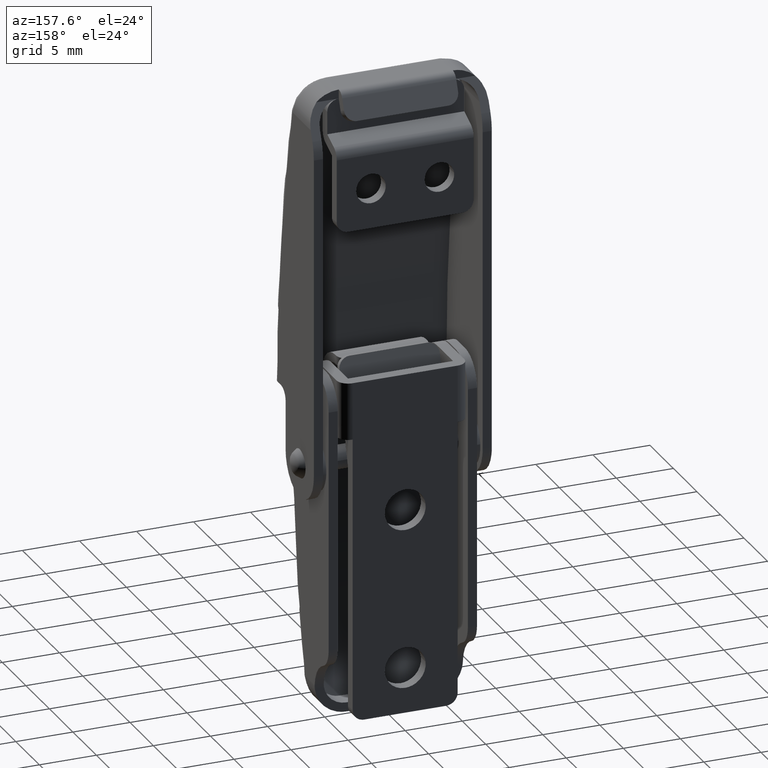
[diagram: clean part render]
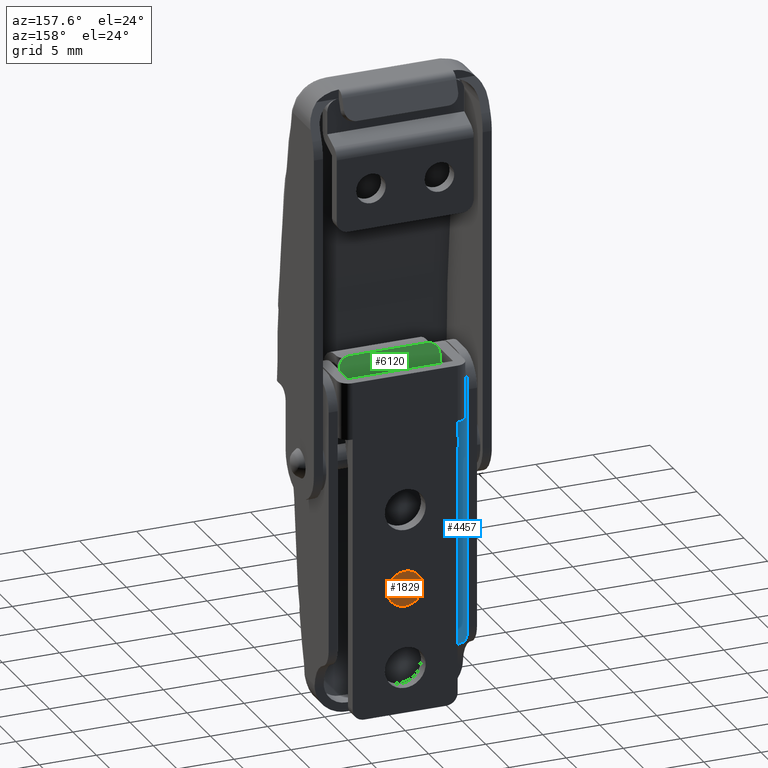
[diagram: same view with three faces highlighted in distinct colors, each labeled with its STEP entity id]
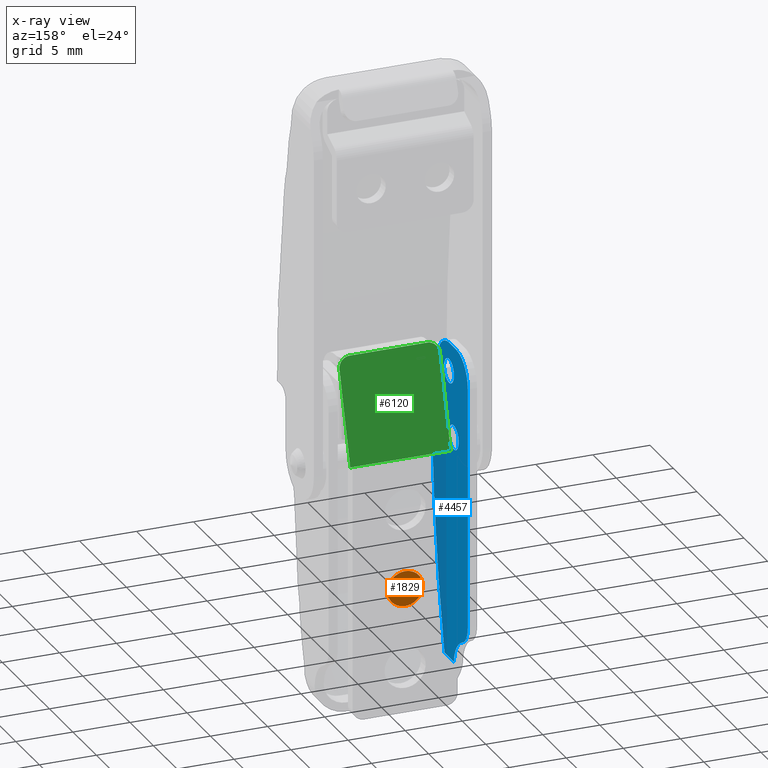
[diagram: x-ray of the same camera — body ghosted, the three highlighted faces saturated]
A machine part, auxiliary view with three faces highlighted in distinct colors.
The next image is the same camera in x-ray (body ghosted, the three faces saturated) — at least one of them is partly hidden behind the body in this view.
Their STEP definitions:

[orange] entity #1829 — the highlighted face is a freeform B-spline surface patch.
#1501=CARTESIAN_POINT('',(-1.545221867319744,8.341299E-011,5.621611598988027));
#1502=VERTEX_POINT('',#1501);
#1508=CARTESIAN_POINT('',(-2.842171E-014,4.440892E-016,3.949999999970709));
#1509=VERTEX_POINT('',#1508);
#1510=CARTESIAN_POINT('',(-1.545221867319744,8.341299E-011,5.621611598988027));
#1511=CARTESIAN_POINT('',(-1.550000000000028,4.440892E-016,5.560899666468147));
#1512=CARTESIAN_POINT('',(-1.550000000000028,4.440892E-016,5.499999999970710));
#1513=CARTESIAN_POINT('',(-1.550000000000029,4.440892E-016,3.949999999970710));
#1514=CARTESIAN_POINT('',(-2.842171E-014,4.440892E-016,3.949999999970709));
#1522=(BOUNDED_CURVE()B_SPLINE_CURVE(2,(#1510,#1511,#1512,#1513,#1514),.UNSPECIFIED.,.F.,.U.)B_SPLINE_CURVE_WITH_KNOTS((3,2,3),(0.736331300492405,0.750000000000000,1.0),.UNSPECIFIED.)CURVE()GEOMETRIC_REPRESENTATION_ITEM()RATIONAL_B_SPLINE_CURVE((0.969723355878890,0.983986122416906,1.0,0.707106781186547,1.0))REPRESENTATION_ITEM(''));
#1523=EDGE_CURVE('',#1502,#1509,#1522,.T.);
#1525=CARTESIAN_POINT('',(0.833668730056082,1.303993E-011,6.806712075589150));
#1526=VERTEX_POINT('',#1525);
#1527=CARTESIAN_POINT('',(-2.842171E-014,4.440892E-016,3.949999999970709));
#1528=CARTESIAN_POINT('',(1.549999999999971,4.440892E-016,3.949999999970710));
#1529=CARTESIAN_POINT('',(1.549999999999972,4.440892E-016,5.499999999970710));
#1530=CARTESIAN_POINT('',(1.549999999999972,4.440892E-016,6.349700166473440));
#1531=CARTESIAN_POINT('',(0.833668730056082,1.303993E-011,6.806712075589150));
#1539=(BOUNDED_CURVE()B_SPLINE_CURVE(2,(#1527,#1528,#1529,#1530,#1531),.UNSPECIFIED.,.F.,.U.)B_SPLINE_CURVE_WITH_KNOTS((3,2,3),(0.0,0.250000000000000,0.407950112579082),.UNSPECIFIED.)CURVE()GEOMETRIC_REPRESENTATION_ITEM()RATIONAL_B_SPLINE_CURVE((1.0,0.707106781186547,1.0,0.814949932459062,0.863729296924987))REPRESENTATION_ITEM(''));
#1540=EDGE_CURVE('',#1509,#1526,#1539,.T.);
#1584=CARTESIAN_POINT('',(-2.842171E-014,4.440892E-016,7.049999999970710));
#1585=VERTEX_POINT('',#1584);
#1586=CARTESIAN_POINT('',(0.833668730056082,1.303993E-011,6.806712075589150));
#1587=CARTESIAN_POINT('',(0.452333486104904,4.440892E-016,7.049999999970710));
#1588=CARTESIAN_POINT('',(-2.842171E-014,4.440892E-016,7.049999999970710));
#1596=(BOUNDED_CURVE()B_SPLINE_CURVE(2,(#1586,#1587,#1588),.UNSPECIFIED.,.F.,.U.)B_SPLINE_CURVE_WITH_KNOTS((3,3),(0.407950112579082,0.500000000000000),.UNSPECIFIED.)CURVE()GEOMETRIC_REPRESENTATION_ITEM()RATIONAL_B_SPLINE_CURVE((0.863729296924987,0.892156848727486,1.0))REPRESENTATION_ITEM(''));
#1597=EDGE_CURVE('',#1526,#1585,#1596,.T.);
#1599=CARTESIAN_POINT('',(-2.842171E-014,4.440892E-016,7.049999999970710));
#1600=CARTESIAN_POINT('',(-1.432805260893445,4.440892E-016,7.049999999970710));
#1601=CARTESIAN_POINT('',(-1.545221867319745,8.341299E-011,5.621611598988027));
#1609=(BOUNDED_CURVE()B_SPLINE_CURVE(2,(#1599,#1600,#1601),.UNSPECIFIED.,.F.,.U.)B_SPLINE_CURVE_WITH_KNOTS((3,3),(0.500000000000000,0.736331300492405),.UNSPECIFIED.)CURVE()GEOMETRIC_REPRESENTATION_ITEM()RATIONAL_B_SPLINE_CURVE((1.0,0.723120658769641,0.969723355878891))REPRESENTATION_ITEM(''));
#1610=EDGE_CURVE('',#1585,#1502,#1609,.T.);
#1818=CARTESIAN_POINT('',(-1.704366074303952,2.220446E-016,3.795155024004315));
#1819=CARTESIAN_POINT('',(-1.704366074303952,2.220446E-016,7.204845308531021));
#1820=CARTESIAN_POINT('',(1.704250193039686,2.220446E-016,3.795155024004315));
#1821=CARTESIAN_POINT('',(1.704250193039686,2.220446E-016,7.204845308531021));
#1822=B_SPLINE_SURFACE_WITH_KNOTS('',1,1,((#1818,#1820),(#1819,#1821)),.UNSPECIFIED.,.F.,.F.,.U.,(2,2),(2,2),(0.0,3.409690284526706),(0.0,3.408616267343637),.UNSPECIFIED.);
#1823=ORIENTED_EDGE('',*,*,#1523,.F.);
#1824=ORIENTED_EDGE('',*,*,#1610,.F.);
#1825=ORIENTED_EDGE('',*,*,#1597,.F.);
#1826=ORIENTED_EDGE('',*,*,#1540,.F.);
#1827=EDGE_LOOP('',(#1823,#1824,#1825,#1826));
#1828=FACE_OUTER_BOUND('',#1827,.T.);
#1829=ADVANCED_FACE('',(#1828),#1822,.T.);

[blue] entity #4457 — the highlighted face is a freeform B-spline surface patch.
#1905=CARTESIAN_POINT('',(-5.699999999998930,-4.499999999987829,10.549999999999800));
#1906=VERTEX_POINT('',#1905);
#1907=CARTESIAN_POINT('',(-5.699999999998930,-3.453236799568765,9.582382050523187));
#1908=VERTEX_POINT('',#1907);
#1909=CARTESIAN_POINT('',(-5.699999999998930,-4.499999999987829,10.549999999999800));
#1910=CARTESIAN_POINT('',(-5.699999999998931,-3.529389983763730,10.549999999999800));
#1911=CARTESIAN_POINT('',(-5.699999999998930,-3.453236799568766,9.582382050523187));
#1919=(BOUNDED_CURVE()B_SPLINE_CURVE(2,(#1909,#1910,#1911),.UNSPECIFIED.,.F.,.U.)B_SPLINE_CURVE_WITH_KNOTS((3,3),(0.0,0.236331300629771),.UNSPECIFIED.)CURVE()GEOMETRIC_REPRESENTATION_ITEM()RATIONAL_B_SPLINE_CURVE((1.0,0.723120658608707,0.969723356165563))REPRESENTATION_ITEM(''));
#1920=EDGE_CURVE('',#1906,#1908,#1919,.T.);
#1922=CARTESIAN_POINT('',(-5.699999999998930,-5.546763200406893,9.417617949476419));
#1923=VERTEX_POINT('',#1922);
#1924=CARTESIAN_POINT('',(-5.699999999998930,-5.546763200406893,9.417617949476417));
#1925=CARTESIAN_POINT('',(-5.699999999998930,-5.549999999987830,9.458745387632559));
#1926=CARTESIAN_POINT('',(-5.699999999998930,-5.549999999987829,9.499999999999801));
#1927=CARTESIAN_POINT('',(-5.699999999998931,-5.549999999987829,10.549999999999802));
#1928=CARTESIAN_POINT('',(-5.699999999998930,-4.499999999987829,10.549999999999800));
#1936=(BOUNDED_CURVE()B_SPLINE_CURVE(2,(#1924,#1925,#1926,#1927,#1928),.UNSPECIFIED.,.F.,.U.)B_SPLINE_CURVE_WITH_KNOTS((3,2,3),(0.736331300629771,0.750000000000000,1.0),.UNSPECIFIED.)CURVE()GEOMETRIC_REPRESENTATION_ITEM()RATIONAL_B_SPLINE_CURVE((0.969723356165564,0.983986122577841,1.0,0.707106781186548,1.0))REPRESENTATION_ITEM(''));
#1937=EDGE_CURVE('',#1923,#1906,#1936,.T.);
#2004=CARTESIAN_POINT('',(-5.699999999998930,-4.499999999987829,8.449999999999800));
#2005=VERTEX_POINT('',#2004);
#2006=CARTESIAN_POINT('',(-5.699999999998930,-3.453236799568766,9.582382050523187));
#2007=CARTESIAN_POINT('',(-5.699999999998931,-3.449999999987830,9.541254612367043));
#2008=CARTESIAN_POINT('',(-5.699999999998930,-3.449999999987830,9.499999999999801));
#2009=CARTESIAN_POINT('',(-5.699999999998931,-3.449999999987830,8.449999999999800));
#2010=CARTESIAN_POINT('',(-5.699999999998930,-4.499999999987829,8.449999999999800));
#2018=(BOUNDED_CURVE()B_SPLINE_CURVE(2,(#2006,#2007,#2008,#2009,#2010),.UNSPECIFIED.,.F.,.U.)B_SPLINE_CURVE_WITH_KNOTS((3,2,3),(0.236331300629771,0.250000000000000,0.500000000000000),.UNSPECIFIED.)CURVE()GEOMETRIC_REPRESENTATION_ITEM()RATIONAL_B_SPLINE_CURVE((0.969723356165563,0.983986122577841,1.0,0.707106781186548,1.0))REPRESENTATION_ITEM(''));
#2019=EDGE_CURVE('',#1908,#2005,#2018,.T.);
#2053=CARTESIAN_POINT('',(-5.699999999998930,-4.499999999987829,8.449999999999800));
#2054=CARTESIAN_POINT('',(-5.699999999998931,-5.470610016211929,8.449999999999802));
#2055=CARTESIAN_POINT('',(-5.699999999998930,-5.546763200406893,9.417617949476419));
#2063=(BOUNDED_CURVE()B_SPLINE_CURVE(2,(#2053,#2054,#2055),.UNSPECIFIED.,.F.,.U.)B_SPLINE_CURVE_WITH_KNOTS((3,3),(0.500000000000000,0.736331300629771),.UNSPECIFIED.)CURVE()GEOMETRIC_REPRESENTATION_ITEM()RATIONAL_B_SPLINE_CURVE((1.0,0.723120658608707,0.969723356165563))REPRESENTATION_ITEM(''));
#2064=EDGE_CURVE('',#2005,#1923,#2063,.T.);
#2087=CARTESIAN_POINT('',(-5.699999999998930,-3.499999999998976,5.049999999999799));
#2088=VERTEX_POINT('',#2087);
#2089=CARTESIAN_POINT('',(-5.699999999998930,-2.453236799579911,4.082382050523185));
#2090=VERTEX_POINT('',#2089);
#2091=CARTESIAN_POINT('',(-5.699999999998930,-3.499999999998976,5.049999999999799));
#2092=CARTESIAN_POINT('',(-5.699999999998932,-2.529389983774875,5.049999999999800));
#2093=CARTESIAN_POINT('',(-5.699999999998930,-2.453236799579912,4.082382050523185));
#2101=(BOUNDED_CURVE()B_SPLINE_CURVE(2,(#2091,#2092,#2093),.UNSPECIFIED.,.F.,.U.)B_SPLINE_CURVE_WITH_KNOTS((3,3),(0.0,0.236331300629771),.UNSPECIFIED.)CURVE()GEOMETRIC_REPRESENTATION_ITEM()RATIONAL_B_SPLINE_CURVE((1.0,0.723120658608707,0.969723356165563))REPRESENTATION_ITEM(''));
#2102=EDGE_CURVE('',#2088,#2090,#2101,.T.);
#2104=CARTESIAN_POINT('',(-5.699999999998930,-4.546763200418039,3.917617949476416));
#2105=VERTEX_POINT('',#2104);
#2106=CARTESIAN_POINT('',(-5.699999999998930,-4.546763200418039,3.917617949476416));
#2107=CARTESIAN_POINT('',(-5.699999999998930,-4.549999999998975,3.958745387632558));
#2108=CARTESIAN_POINT('',(-5.699999999998930,-4.549999999998975,3.999999999999800));
#2109=CARTESIAN_POINT('',(-5.699999999998931,-4.549999999998975,5.049999999999799));
#2110=CARTESIAN_POINT('',(-5.699999999998930,-3.499999999998976,5.049999999999799));
#2118=(BOUNDED_CURVE()B_SPLINE_CURVE(2,(#2106,#2107,#2108,#2109,#2110),.UNSPECIFIED.,.F.,.U.)B_SPLINE_CURVE_WITH_KNOTS((3,2,3),(0.736331300629771,0.750000000000000,1.0),.UNSPECIFIED.)CURVE()GEOMETRIC_REPRESENTATION_ITEM()RATIONAL_B_SPLINE_CURVE((0.969723356165563,0.983986122577841,1.0,0.707106781186548,1.0))REPRESENTATION_ITEM(''));
#2119=EDGE_CURVE('',#2105,#2088,#2118,.T.);
#2186=CARTESIAN_POINT('',(-5.699999999998930,-3.499999999998976,2.949999999999800));
#2187=VERTEX_POINT('',#2186);
#2188=CARTESIAN_POINT('',(-5.699999999998930,-2.453236799579912,4.082382050523185));
#2189=CARTESIAN_POINT('',(-5.699999999998930,-2.449999999998976,4.041254612367043));
#2190=CARTESIAN_POINT('',(-5.699999999998930,-2.449999999998976,3.999999999999800));
#2191=CARTESIAN_POINT('',(-5.699999999998931,-2.449999999998975,2.949999999999800));
#2192=CARTESIAN_POINT('',(-5.699999999998930,-3.499999999998976,2.949999999999800));
#2200=(BOUNDED_CURVE()B_SPLINE_CURVE(2,(#2188,#2189,#2190,#2191,#2192),.UNSPECIFIED.,.F.,.U.)B_SPLINE_CURVE_WITH_KNOTS((3,2,3),(0.236331300629771,0.250000000000000,0.500000000000000),.UNSPECIFIED.)CURVE()GEOMETRIC_REPRESENTATION_ITEM()RATIONAL_B_SPLINE_CURVE((0.969723356165563,0.983986122577841,1.0,0.707106781186548,1.0))REPRESENTATION_ITEM(''));
#2201=EDGE_CURVE('',#2090,#2187,#2200,.T.);
#2235=CARTESIAN_POINT('',(-5.699999999998930,-3.499999999998976,2.949999999999800));
#2236=CARTESIAN_POINT('',(-5.699999999998931,-4.470610016223076,2.949999999999800));
#2237=CARTESIAN_POINT('',(-5.699999999998930,-4.546763200418039,3.917617949476416));
#2245=(BOUNDED_CURVE()B_SPLINE_CURVE(2,(#2235,#2236,#2237),.UNSPECIFIED.,.F.,.U.)B_SPLINE_CURVE_WITH_KNOTS((3,3),(0.500000000000000,0.736331300629771),.UNSPECIFIED.)CURVE()GEOMETRIC_REPRESENTATION_ITEM()RATIONAL_B_SPLINE_CURVE((1.0,0.723120658608707,0.969723356165563))REPRESENTATION_ITEM(''));
#2246=EDGE_CURVE('',#2187,#2105,#2245,.T.);
#4248=CARTESIAN_POINT('',(-5.699999999998930,-3.484962311258985,-15.899999999996600));
#4249=VERTEX_POINT('',#4248);
#4259=CARTESIAN_POINT('',(-5.699999999998930,-5.471578582851690,-15.899999999996901));
#4260=VERTEX_POINT('',#4259);
#4261=CARTESIAN_POINT('',(-5.699999999998930,-5.471578582851690,-15.899999999996901));
#4262=CARTESIAN_POINT('',(-5.699999999998930,-3.484962311258985,-15.899999999996600));
#4263=QUASI_UNIFORM_CURVE('',1,(#4261,#4262),.UNSPECIFIED.,.F.,.U.);
#4264=EDGE_CURVE('',#4260,#4249,#4263,.T.);
#4320=CARTESIAN_POINT('',(-5.699999999998909,-0.115385042421190,-17.293604684015879));
#4321=CARTESIAN_POINT('',(-5.699999999998910,-8.584614613348464,-17.293604684015879));
#4322=CARTESIAN_POINT('',(-5.699999999998909,-0.115385042421190,13.393605681800540));
#4323=CARTESIAN_POINT('',(-5.699999999998910,-8.584614613348464,13.393605681800540));
#4324=B_SPLINE_SURFACE_WITH_KNOTS('',1,1,((#4320,#4322),(#4321,#4323)),.UNSPECIFIED.,.F.,.F.,.U.,(2,2),(2,2),(0.0,8.469229570927274),(0.0,30.687210365816419),.UNSPECIFIED.);
#4325=CARTESIAN_POINT('',(-5.699999999998930,-8.199999999998649,7.299999999999420));
#4326=VERTEX_POINT('',#4325);
#4327=CARTESIAN_POINT('',(-5.699999999998930,-5.471578582851633,-15.899999999996890));
#4328=CARTESIAN_POINT('',(-5.699999999998930,-8.199999999998598,-4.460437142876720));
#4329=CARTESIAN_POINT('',(-5.699999999998930,-8.199999999998649,7.299999999999420));
#4337=(BOUNDED_CURVE()B_SPLINE_CURVE(2,(#4327,#4328,#4329),.UNSPECIFIED.,.F.,.U.)CURVE()GEOMETRIC_REPRESENTATION_ITEM()QUASI_UNIFORM_CURVE()RATIONAL_B_SPLINE_CURVE((1.0,0.993155523024599,1.0))REPRESENTATION_ITEM(''));
#4338=EDGE_CURVE('',#4260,#4326,#4337,.T.);
#4339=ORIENTED_EDGE('',*,*,#4338,.F.);
#4340=ORIENTED_EDGE('',*,*,#4264,.T.);
#4341=CARTESIAN_POINT('',(-5.699999999998930,-1.699999999974555,-13.450454583066019));
#4342=VERTEX_POINT('',#4341);
#4343=CARTESIAN_POINT('',(-5.699999999998930,-3.484962311258988,-15.899999999996600));
#4344=CARTESIAN_POINT('',(-5.699999999998930,-3.309366076353770,-14.152839522682712));
#4345=CARTESIAN_POINT('',(-5.699999999998930,-1.699999999974554,-13.450454583066019));
#4353=(BOUNDED_CURVE()B_SPLINE_CURVE(2,(#4343,#4344,#4345),.UNSPECIFIED.,.F.,.U.)CURVE()GEOMETRIC_REPRESENTATION_ITEM()QUASI_UNIFORM_CURVE()RATIONAL_B_SPLINE_CURVE((1.0,0.863031427222150,1.0))REPRESENTATION_ITEM(''));
#4354=EDGE_CURVE('',#4249,#4342,#4353,.T.);
#4355=ORIENTED_EDGE('',*,*,#4354,.T.);
#4356=CARTESIAN_POINT('',(-5.699999999998930,-0.500000000024230,-11.617424305090079));
#4357=VERTEX_POINT('',#4356);
#4358=CARTESIAN_POINT('',(-5.699999999998930,-0.500000000024230,-11.617424305090079));
#4359=CARTESIAN_POINT('',(-5.699999999998930,-0.499999999983512,-12.926731646498345));
#4360=CARTESIAN_POINT('',(-5.699999999998930,-1.699999999974555,-13.450454583066019));
#4368=(BOUNDED_CURVE()B_SPLINE_CURVE(2,(#4358,#4359,#4360),.UNSPECIFIED.,.F.,.U.)CURVE()GEOMETRIC_REPRESENTATION_ITEM()QUASI_UNIFORM_CURVE()RATIONAL_B_SPLINE_CURVE((1.0,0.836660026535550,1.0))REPRESENTATION_ITEM(''));
#4369=EDGE_CURVE('',#4357,#4342,#4368,.T.);
#4370=ORIENTED_EDGE('',*,*,#4369,.F.);
#4371=CARTESIAN_POINT('',(-5.699999999998930,-0.499999999987828,9.499999999995492));
#4372=VERTEX_POINT('',#4371);
#4373=CARTESIAN_POINT('',(-5.699999999998930,-0.500000000024230,-11.617424305090079));
#4374=CARTESIAN_POINT('',(-5.699999999998930,-0.499999999987828,9.499999999995492));
#4375=QUASI_UNIFORM_CURVE('',1,(#4373,#4374),.UNSPECIFIED.,.F.,.U.);
#4376=EDGE_CURVE('',#4357,#4372,#4375,.T.);
#4377=ORIENTED_EDGE('',*,*,#4376,.T.);
#4378=CARTESIAN_POINT('',(-5.699999999998930,-2.999999999987830,11.999999999999799));
#4379=VERTEX_POINT('',#4378);
#4380=CARTESIAN_POINT('',(-5.699999999998930,-2.999999999987830,11.999999999999799));
#4381=CARTESIAN_POINT('',(-5.699999999998930,-1.964466094053830,11.999999999999803));
#4382=CARTESIAN_POINT('',(-5.699999999998930,-1.232233047019938,11.267766952964649));
#4383=CARTESIAN_POINT('',(-5.699999999998930,-0.499999999986045,10.535533905929491));
#4384=CARTESIAN_POINT('',(-5.699999999998930,-0.499999999987830,9.499999999995492));
#4392=(BOUNDED_CURVE()B_SPLINE_CURVE(2,(#4380,#4381,#4382,#4383,#4384),.UNSPECIFIED.,.F.,.U.)B_SPLINE_CURVE_WITH_KNOTS((3,2,3),(0.0,0.500000000000000,1.0),.UNSPECIFIED.)CURVE()GEOMETRIC_REPRESENTATION_ITEM()RATIONAL_B_SPLINE_CURVE((1.0,0.923879532511122,1.0,0.923879532511122,1.0))REPRESENTATION_ITEM(''));
#4393=EDGE_CURVE('',#4379,#4372,#4392,.T.);
#4394=ORIENTED_EDGE('',*,*,#4393,.F.);
#4395=CARTESIAN_POINT('',(-5.699999999998930,-4.499999999987829,11.999999999999799));
#4396=VERTEX_POINT('',#4395);
#4397=CARTESIAN_POINT('',(-5.699999999998930,-2.999999999987830,11.999999999999799));
#4398=CARTESIAN_POINT('',(-5.699999999998930,-4.499999999987829,11.999999999999799));
#4399=QUASI_UNIFORM_CURVE('',1,(#4397,#4398),.UNSPECIFIED.,.F.,.U.);
#4400=EDGE_CURVE('',#4379,#4396,#4399,.T.);
#4401=ORIENTED_EDGE('',*,*,#4400,.T.);
#4402=CARTESIAN_POINT('',(-5.699999999998930,-6.999999999987830,9.499999999999801));
#4403=VERTEX_POINT('',#4402);
#4404=CARTESIAN_POINT('',(-5.699999999998930,-6.999999999987830,9.499999999999801));
#4405=CARTESIAN_POINT('',(-5.699999999998931,-6.999999999987831,11.999999999999799));
#4406=CARTESIAN_POINT('',(-5.699999999998930,-4.499999999987829,11.999999999999799));
#4414=(BOUNDED_CURVE()B_SPLINE_CURVE(2,(#4404,#4405,#4406),.UNSPECIFIED.,.F.,.U.)CURVE()GEOMETRIC_REPRESENTATION_ITEM()QUASI_UNIFORM_CURVE()RATIONAL_B_SPLINE_CURVE((1.0,0.707106781186548,1.0))REPRESENTATION_ITEM(''));
#4415=EDGE_CURVE('',#4403,#4396,#4414,.T.);
#4416=ORIENTED_EDGE('',*,*,#4415,.F.);
#4417=CARTESIAN_POINT('',(-5.699999999998930,-6.999999999987830,9.299999999999800));
#4418=VERTEX_POINT('',#4417);
#4419=CARTESIAN_POINT('',(-5.699999999998930,-6.999999999987830,9.499999999999801));
#4420=CARTESIAN_POINT('',(-5.699999999998930,-6.999999999987830,9.299999999999800));
#4421=QUASI_UNIFORM_CURVE('',1,(#4419,#4420),.UNSPECIFIED.,.F.,.U.);
#4422=EDGE_CURVE('',#4403,#4418,#4421,.T.);
#4423=ORIENTED_EDGE('',*,*,#4422,.T.);
#4424=CARTESIAN_POINT('',(-5.699999999998930,-7.199999999987820,9.299999999999800));
#4425=VERTEX_POINT('',#4424);
#4426=CARTESIAN_POINT('',(-5.699999999998930,-6.999999999987830,9.299999999999800));
#4427=CARTESIAN_POINT('',(-5.699999999998930,-7.199999999987820,9.299999999999800));
#4428=QUASI_UNIFORM_CURVE('',1,(#4426,#4427),.UNSPECIFIED.,.F.,.U.);
#4429=EDGE_CURVE('',#4418,#4425,#4428,.T.);
#4430=ORIENTED_EDGE('',*,*,#4429,.T.);
#4431=CARTESIAN_POINT('',(-5.699999999998930,-7.199999999987820,9.091878521963832));
#4432=VERTEX_POINT('',#4431);
#4433=CARTESIAN_POINT('',(-5.699999999998930,-7.199999999987820,9.091878521963832));
#4434=CARTESIAN_POINT('',(-5.699999999998930,-7.199999999987820,9.299999999999800));
#4435=QUASI_UNIFORM_CURVE('',1,(#4433,#4434),.UNSPECIFIED.,.F.,.U.);
#4436=EDGE_CURVE('',#4432,#4425,#4435,.T.);
#4437=ORIENTED_EDGE('',*,*,#4436,.F.);
#4438=CARTESIAN_POINT('',(-5.699999999998930,-8.199999999998649,7.299999999999420));
#4439=CARTESIAN_POINT('',(-5.699999999998930,-7.199999999987820,9.091878521963832));
#4440=QUASI_UNIFORM_CURVE('',1,(#4438,#4439),.UNSPECIFIED.,.F.,.U.);
#4441=EDGE_CURVE('',#4326,#4432,#4440,.T.);
#4442=ORIENTED_EDGE('',*,*,#4441,.F.);
#4443=EDGE_LOOP('',(#4339,#4340,#4355,#4370,#4377,#4394,#4401,#4416,#4423,#4430,#4437,#4442));
#4444=FACE_OUTER_BOUND('',#4443,.T.);
#4445=ORIENTED_EDGE('',*,*,#2246,.T.);
#4446=ORIENTED_EDGE('',*,*,#2119,.T.);
#4447=ORIENTED_EDGE('',*,*,#2102,.T.);
#4448=ORIENTED_EDGE('',*,*,#2201,.T.);
#4449=EDGE_LOOP('',(#4445,#4446,#4447,#4448));
#4450=FACE_BOUND('',#4449,.T.);
#4451=ORIENTED_EDGE('',*,*,#2064,.T.);
#4452=ORIENTED_EDGE('',*,*,#1937,.T.);
#4453=ORIENTED_EDGE('',*,*,#1920,.T.);
#4454=ORIENTED_EDGE('',*,*,#2019,.T.);
#4455=EDGE_LOOP('',(#4451,#4452,#4453,#4454));
#4456=FACE_BOUND('',#4455,.T.);
#4457=ADVANCED_FACE('',(#4444,#4450,#4456),#4324,.F.);

[green] entity #6120 — the highlighted face is a freeform B-spline surface patch.
#5763=CARTESIAN_POINT('',(-4.400000000000000,-3.292712890197280,11.812565551297521));
#5764=VERTEX_POINT('',#5763);
#5765=CARTESIAN_POINT('',(-3.399999999999960,-3.576728234901205,12.771385286165700));
#5766=VERTEX_POINT('',#5765);
#5767=CARTESIAN_POINT('',(-4.400000000000000,-3.292712890197280,11.812565551297521));
#5768=CARTESIAN_POINT('',(-4.399999999999960,-3.576728234901203,12.771385286165714));
#5769=CARTESIAN_POINT('',(-3.399999999999960,-3.576728234901202,12.771385286165710));
#5777=(BOUNDED_CURVE()B_SPLINE_CURVE(2,(#5767,#5768,#5769),.UNSPECIFIED.,.F.,.U.)CURVE()GEOMETRIC_REPRESENTATION_ITEM()QUASI_UNIFORM_CURVE()RATIONAL_B_SPLINE_CURVE((1.0,0.707106781186548,1.0))REPRESENTATION_ITEM(''));
#5778=EDGE_CURVE('',#5764,#5766,#5777,.T.);
#5824=CARTESIAN_POINT('',(3.399999999999960,-3.576728234901205,12.771385286165700));
#5825=VERTEX_POINT('',#5824);
#5826=CARTESIAN_POINT('',(4.400000000000000,-3.292712890197280,11.812565551297521));
#5827=VERTEX_POINT('',#5826);
#5828=CARTESIAN_POINT('',(3.399999999999960,-3.576728234901205,12.771385286165700));
#5829=CARTESIAN_POINT('',(3.814213562373083,-3.576728234901203,12.771385286165719));
#5830=CARTESIAN_POINT('',(4.107106781186533,-3.493542066398462,12.490553487758319));
#5831=CARTESIAN_POINT('',(4.400000000000000,-3.410355897895718,12.209721689350916));
#5832=CARTESIAN_POINT('',(4.400000000000000,-3.292712890197280,11.812565551297521));
#5840=(BOUNDED_CURVE()B_SPLINE_CURVE(2,(#5828,#5829,#5830,#5831,#5832),.UNSPECIFIED.,.F.,.U.)B_SPLINE_CURVE_WITH_KNOTS((3,2,3),(0.0,0.500000000000000,1.0),.UNSPECIFIED.)CURVE()GEOMETRIC_REPRESENTATION_ITEM()RATIONAL_B_SPLINE_CURVE((1.0,0.923879532511291,1.0,0.923879532511291,1.0))REPRESENTATION_ITEM(''));
#5841=EDGE_CURVE('',#5825,#5827,#5840,.T.);
#6002=CARTESIAN_POINT('',(-4.400000000000000,-1.0,4.072496549745829));
#6003=VERTEX_POINT('',#6002);
#6023=CARTESIAN_POINT('',(-4.400000000000000,-1.0,4.072496549745829));
#6024=CARTESIAN_POINT('',(-4.400000000000000,-3.292712890197280,11.812565551297521));
#6025=QUASI_UNIFORM_CURVE('',1,(#6023,#6024),.UNSPECIFIED.,.F.,.U.);
#6026=EDGE_CURVE('',#6003,#5764,#6025,.T.);
#6044=CARTESIAN_POINT('',(4.400000000000000,-1.0,4.072496549745829));
#6045=VERTEX_POINT('',#6044);
#6051=CARTESIAN_POINT('',(4.400000000000000,-1.0,4.072496549745829));
#6052=CARTESIAN_POINT('',(4.400000000000000,-3.292712890197280,11.812565551297521));
#6053=QUASI_UNIFORM_CURVE('',1,(#6051,#6052),.UNSPECIFIED.,.F.,.U.);
#6054=EDGE_CURVE('',#6045,#5827,#6053,.T.);
#6094=CARTESIAN_POINT('',(3.399999999999960,-3.576728234901205,12.771385286165700));
#6095=CARTESIAN_POINT('',(-3.399999999999960,-3.576728234901205,12.771385286165700));
#6096=QUASI_UNIFORM_CURVE('',1,(#6094,#6095),.UNSPECIFIED.,.F.,.U.);
#6097=EDGE_CURVE('',#5825,#5766,#6096,.T.);
#6103=CARTESIAN_POINT('',(-4.839560148160100,-3.705435805240315,13.205894761689740));
#6104=CARTESIAN_POINT('',(-4.839560148160100,-0.871292360547646,3.637986840899413));
#6105=CARTESIAN_POINT('',(4.839560226838232,-3.705435805240315,13.205894761689740));
#6106=CARTESIAN_POINT('',(4.839560226838232,-0.871292360547646,3.637986840899413));
#6107=B_SPLINE_SURFACE_WITH_KNOTS('',1,1,((#6103,#6105),(#6104,#6106)),.UNSPECIFIED.,.F.,.F.,.U.,(2,2),(2,2),(0.0,9.978839163240220),(0.0,9.679120374998332),.UNSPECIFIED.);
#6108=ORIENTED_EDGE('',*,*,#6097,.F.);
#6109=ORIENTED_EDGE('',*,*,#5841,.T.);
#6110=ORIENTED_EDGE('',*,*,#6054,.F.);
#6111=CARTESIAN_POINT('',(4.400000000000000,-1.0,4.072496549745829));
#6112=CARTESIAN_POINT('',(-4.400000000000000,-1.0,4.072496549745829));
#6113=QUASI_UNIFORM_CURVE('',1,(#6111,#6112),.UNSPECIFIED.,.F.,.U.);
#6114=EDGE_CURVE('',#6045,#6003,#6113,.T.);
#6115=ORIENTED_EDGE('',*,*,#6114,.T.);
#6116=ORIENTED_EDGE('',*,*,#6026,.T.);
#6117=ORIENTED_EDGE('',*,*,#5778,.T.);
#6118=EDGE_LOOP('',(#6108,#6109,#6110,#6115,#6116,#6117));
#6119=FACE_OUTER_BOUND('',#6118,.T.);
#6120=ADVANCED_FACE('',(#6119),#6107,.F.);